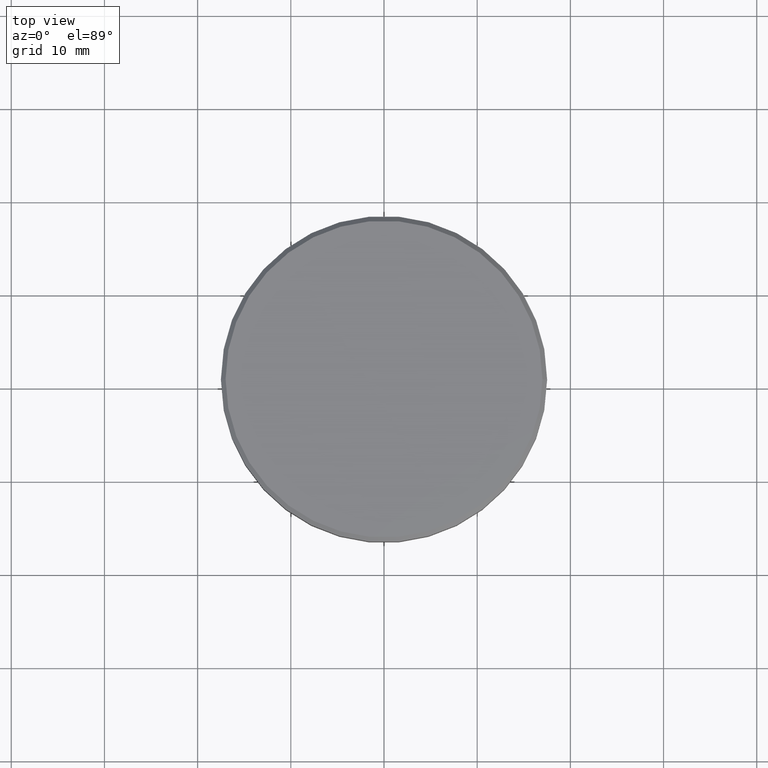
[diagram: clean part render]
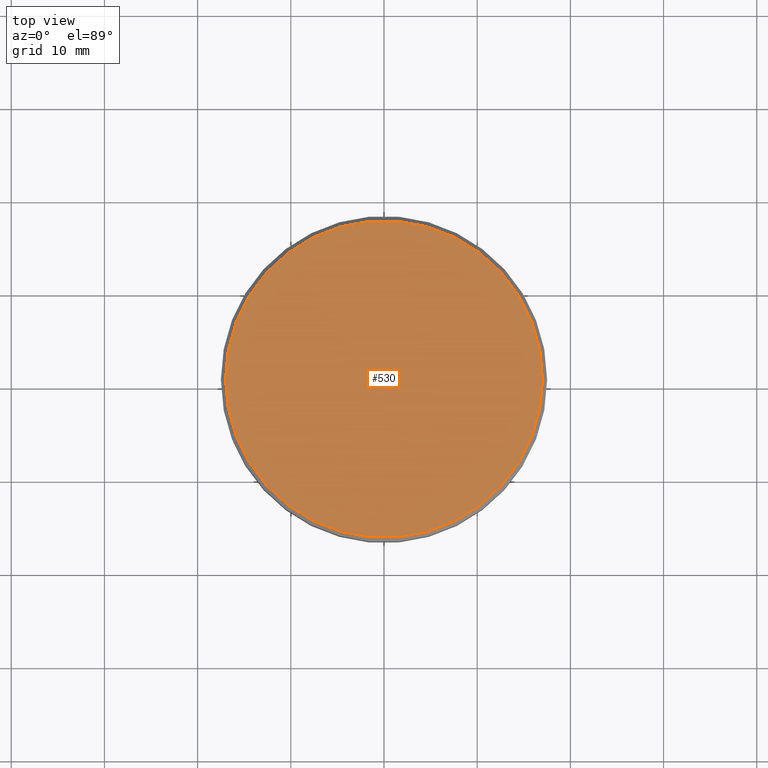
[diagram: same view with one face highlighted and labeled with its STEP entity id]
A machine part, top view. The second image highlights one B-rep face of the part: STEP entity #530.
In plain terms, the highlighted planar face has unit normal (0, -0, 1).
Its self-contained STEP definition (entity closure, byte-faithful):
#49 = EDGE_CURVE ( 'NONE', #449, #789, #561, .T. ) ;
#57 = CARTESIAN_POINT ( 'NONE',  ( 0.000000000000000000, 0.000000000000000000, 0.000000000000000000 ) ) ;
#110 = DIRECTION ( 'NONE',  ( 0.000000000000000000, -0.000000000000000000, 1.000000000000000000 ) ) ;
#122 = CIRCLE ( 'NONE', #365, 16.99999999999997868 ) ;
#178 = EDGE_LOOP ( 'NONE', ( #689, #860 ) ) ;
#203 = FACE_OUTER_BOUND ( 'NONE', #178, .T. ) ;
#229 = DIRECTION ( 'NONE',  ( -0.000000000000000000, -0.000000000000000000, 1.000000000000000000 ) ) ;
#317 = AXIS2_PLACEMENT_3D ( 'NONE', #498, #110, #1103 ) ;
#365 = AXIS2_PLACEMENT_3D ( 'NONE', #57, #792, #436 ) ;
#421 = DIRECTION ( 'NONE',  ( 1.000000000000000000, 0.000000000000000000, 0.000000000000000000 ) ) ;
#436 = DIRECTION ( 'NONE',  ( 1.000000000000000000, 0.000000000000000000, 0.000000000000000000 ) ) ;
#449 = VERTEX_POINT ( 'NONE', #947 ) ;
#498 = CARTESIAN_POINT ( 'NONE',  ( 0.000000000000000000, 0.000000000000000000, 0.000000000000000000 ) ) ;
#530 = ADVANCED_FACE ( 'NONE', ( #203 ), #933, .T. ) ;
#532 = AXIS2_PLACEMENT_3D ( 'NONE', #725, #229, #421 ) ;
#561 = CIRCLE ( 'NONE', #532, 16.99999999999997868 ) ;
#585 = CARTESIAN_POINT ( 'NONE',  ( -16.99999999999997868, 0.000000000000000000, 0.000000000000000000 ) ) ;
#689 = ORIENTED_EDGE ( 'NONE', *, *, #1102, .T. ) ;
#725 = CARTESIAN_POINT ( 'NONE',  ( 0.000000000000000000, 0.000000000000000000, 0.000000000000000000 ) ) ;
#789 = VERTEX_POINT ( 'NONE', #585 ) ;
#792 = DIRECTION ( 'NONE',  ( -0.000000000000000000, -0.000000000000000000, 1.000000000000000000 ) ) ;
#860 = ORIENTED_EDGE ( 'NONE', *, *, #49, .T. ) ;
#933 = PLANE ( 'NONE',  #317 ) ;
#947 = CARTESIAN_POINT ( 'NONE',  ( 16.99999999999997868, 2.112515728529183278E-15, 0.000000000000000000 ) ) ;
#1102 = EDGE_CURVE ( 'NONE', #789, #449, #122, .T. ) ;
#1103 = DIRECTION ( 'NONE',  ( 1.000000000000000000, 0.000000000000000000, 0.000000000000000000 ) ) ;